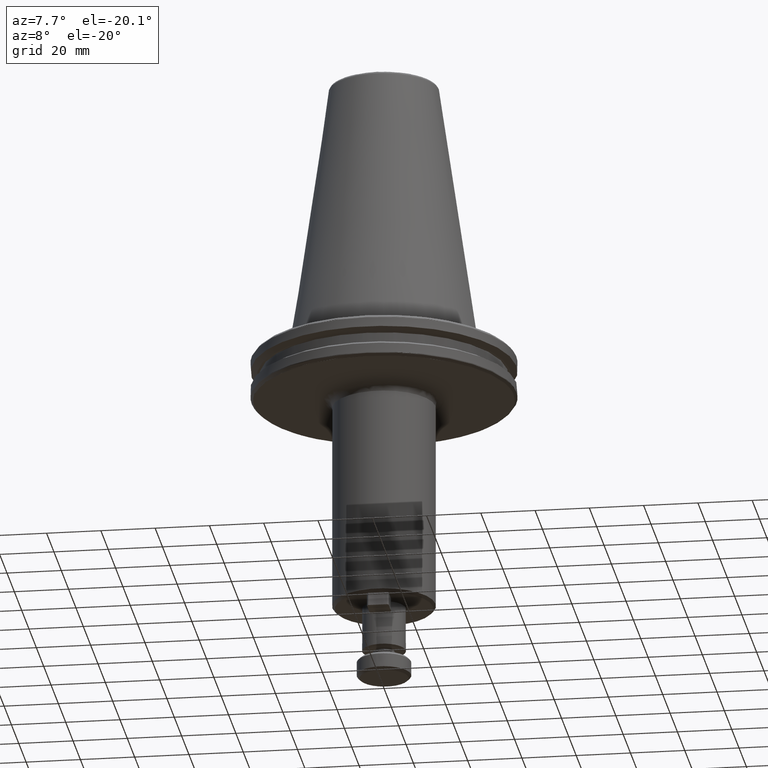
[diagram: clean part render]
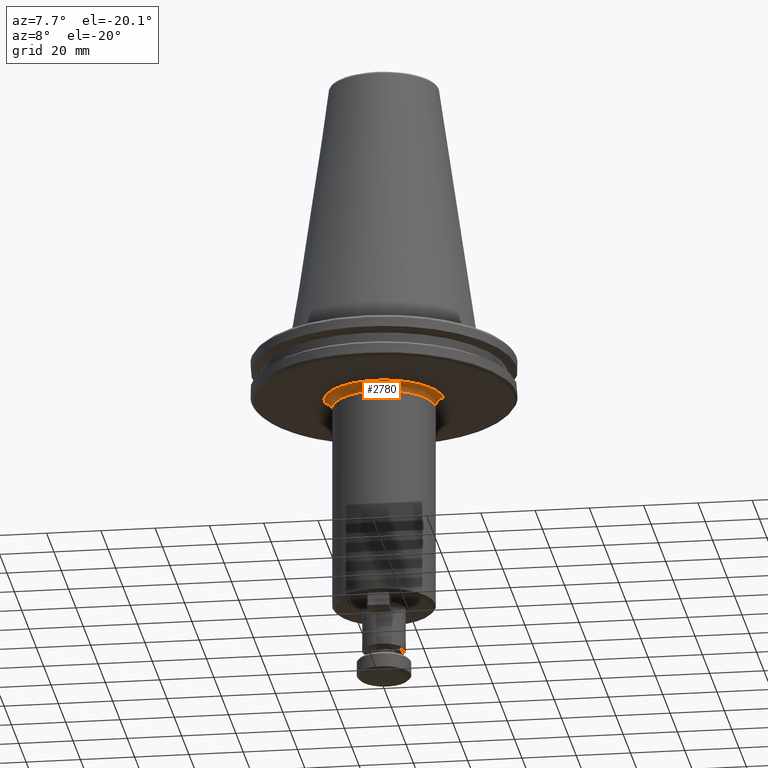
[diagram: same view with one face highlighted and labeled with its STEP entity id]
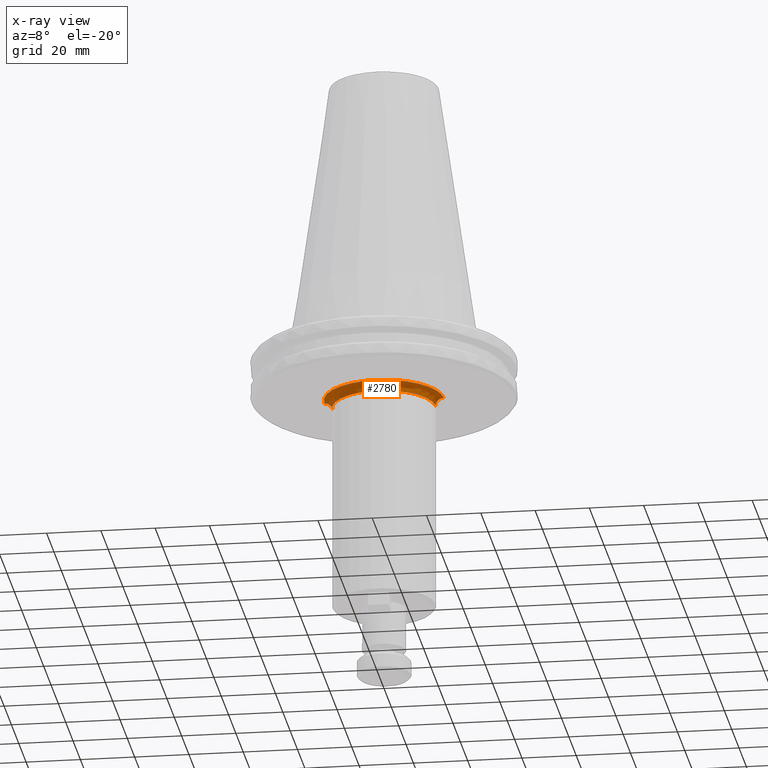
[diagram: x-ray of the same camera — body ghosted, the highlighted face saturated]
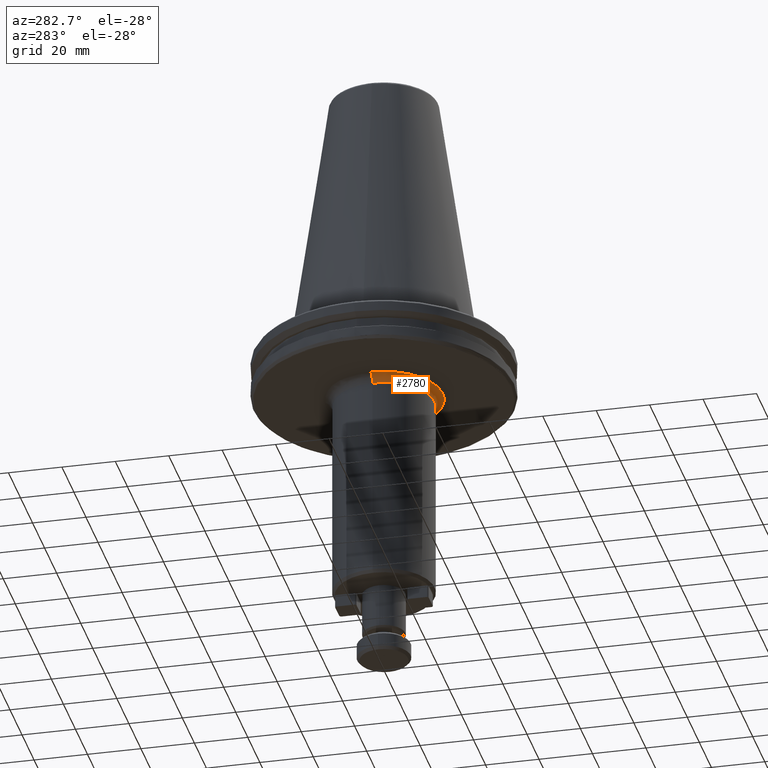
[diagram: same view with one face highlighted and labeled with its STEP entity id]
A machine part, auxiliary view. The second image highlights one B-rep face of the part: STEP entity #2780.
The next image is the same camera in x-ray: the body ghosted, the highlighted face saturated — about 0% of this face is hidden behind the body in this view.
A second angle (auxiliary view) of the same face is appended — the face is thin or edge-on in the first view.
In plain terms, the highlighted face is a freeform B-spline surface patch.
Its self-contained STEP definition (entity closure, byte-faithful):
#35 = CARTESIAN_POINT ( 'NONE',  ( -19.00000000000000000, 2.326828918379971000E-015, -22.10000000000000500 ) ) ;
#40 = CARTESIAN_POINT ( 'NONE',  ( 22.00000000000000000, 2.694222958124176800E-015, -19.10000000000000500 ) ) ;
#77 = CIRCLE ( 'NONE', #3198, 2.999999999999999100 ) ;
#142 = VERTEX_POINT ( 'NONE', #2658 ) ;
#177 = CARTESIAN_POINT ( 'NONE',  ( 19.00000000000000000, 2.326828918379971000E-015, -22.10000000000000500 ) ) ;
#183 = CARTESIAN_POINT ( 'NONE',  ( -20.67791877936986100, -7.515399659677927800, -19.10000000000000500 ) ) ;
#199 = CARTESIAN_POINT ( 'NONE',  ( -16.63001222808562200, -14.48263358433419300, -19.10000000000000500 ) ) ;
#214 = CARTESIAN_POINT ( 'NONE',  ( -8.270596387122957100, -20.38625831590732000, -19.10000000000000500 ) ) ;
#233 = CARTESIAN_POINT ( 'NONE',  ( -1.345275040422472500, -21.99996757059236800, -19.10000000000000900 ) ) ;
#246 = CARTESIAN_POINT ( 'NONE',  ( 7.515399659682968200, -20.67791877936862100, -19.10000000000000100 ) ) ;
#267 = CARTESIAN_POINT ( 'NONE',  ( 14.48263358431708000, -16.63001222810027400, -19.10000000000000500 ) ) ;
#283 = CARTESIAN_POINT ( 'NONE',  ( 20.38625831590878700, -8.270596387119361700, -19.10000000000000500 ) ) ;
#298 = CARTESIAN_POINT ( 'NONE',  ( 21.99999999999999600, -1.345805848813785000, -19.10000000000000100 ) ) ;
#340 = ORIENTED_EDGE ( 'NONE', *, *, #2550, .F. ) ;
#386 = CARTESIAN_POINT ( 'NONE',  ( -21.64787207006385500, -3.920464838257106300, -19.10000000000000100 ) ) ;
#498 = CIRCLE ( 'NONE', #3444, 2.999999999999999100 ) ;
#523 = CARTESIAN_POINT ( 'NONE',  ( -18.99999999999998900, -38.00000000000000000, -22.10000000000000500 ) ) ;
#527 = CARTESIAN_POINT ( 'NONE',  ( -20.52036344144876200, -7.932009045223953300, -19.09999999999999800 ) ) ;
#540 = CARTESIAN_POINT ( 'NONE',  ( -14.17717719791629700, -16.85304434524095600, -19.10000000000000500 ) ) ;
#554 = CARTESIAN_POINT ( 'NONE',  ( -8.139535032519747300, -20.43893125800334300, -19.10000000000000500 ) ) ;
#568 = CARTESIAN_POINT ( 'NONE',  ( 1.677514054503062000, -21.95411813887725900, -19.10000000000000500 ) ) ;
#583 = CARTESIAN_POINT ( 'NONE',  ( 7.932009045225540500, -20.52036344144837400, -19.10000000000000500 ) ) ;
#597 = CARTESIAN_POINT ( 'NONE',  ( 16.85304434525591300, -14.17717719790348600, -19.10000000000000500 ) ) ;
#613 = CARTESIAN_POINT ( 'NONE',  ( 20.43893125800291700, -8.139535032520859300, -19.10000000000000900 ) ) ;
#742 = EDGE_LOOP ( 'NONE', ( #1769, #340, #2151, #2997 ) ) ;
#761 = CARTESIAN_POINT ( 'NONE',  ( 22.00000000000000000, 2.694222958124176800E-015, -19.10000000000000500 ) ) ;
#841 = CARTESIAN_POINT ( 'NONE',  ( -22.00000000000000000, -5.388445916248353600E-015, -19.10000000000000500 ) ) ;
#864 = CARTESIAN_POINT ( 'NONE',  ( -20.47244127071620300, -8.054890344844070100, -19.10000000000000100 ) ) ;
#875 = CARTESIAN_POINT ( 'NONE',  ( -12.58948349908238900, -18.04357110901347700, -19.10000000000000100 ) ) ;
#889 = CARTESIAN_POINT ( 'NONE',  ( -6.425581732760171900, -21.06203278896098000, -19.10000000000000900 ) ) ;
#902 = CARTESIAN_POINT ( 'NONE',  ( 3.423553767312095300, -21.73315916266629000, -19.10000000000000500 ) ) ;
#918 = CARTESIAN_POINT ( 'NONE',  ( 8.054890344843361300, -20.47244127071656500, -19.10000000000000500 ) ) ;
#929 = CARTESIAN_POINT ( 'NONE',  ( 18.04357110902002500, -12.58948349907677600, -19.10000000000000900 ) ) ;
#944 = CARTESIAN_POINT ( 'NONE',  ( 21.06203278897300600, -6.425581732729024300, -19.10000000000000500 ) ) ;
#1019 = CIRCLE ( 'NONE', #3731, 19.00000000000000000 ) ;
#1114 = VERTEX_POINT ( 'NONE', #761 ) ;
#1144 = CARTESIAN_POINT ( 'NONE',  ( -21.82018490565353000, -2.842845475237781200, -19.10000000000000500 ) ) ;
#1171 = CARTESIAN_POINT ( 'NONE',  ( 20.24264068711928400, -40.48528137423856100, -19.10000000000000100 ) ) ;
#1188 = CARTESIAN_POINT ( 'NONE',  ( -19.72140032570629800, -9.800061415354756300, -19.10000000000000100 ) ) ;
#1200 = CARTESIAN_POINT ( 'NONE',  ( -12.19716485784353000, -18.30951292798233300, -19.10000000000000500 ) ) ;
#1212 = CARTESIAN_POINT ( 'NONE',  ( -4.615105481666332400, -21.51181872264644600, -19.10000000000000500 ) ) ;
#1223 = CARTESIAN_POINT ( 'NONE',  ( 3.858390362183781200, -21.65908406010714100, -19.10000000000000100 ) ) ;
#1243 = CARTESIAN_POINT ( 'NONE',  ( 9.800061415374729600, -19.72140032569657500, -19.10000000000000500 ) ) ;
#1256 = CARTESIAN_POINT ( 'NONE',  ( 18.30951292798441100, -12.19716485784174700, -19.10000000000000900 ) ) ;
#1272 = CARTESIAN_POINT ( 'NONE',  ( 21.51181872265170000, -4.615105481652700600, -19.10000000000000500 ) ) ;
#1329 = CARTESIAN_POINT ( 'NONE',  ( -21.25843199324159400, -5.742510465904495700, -19.10000000000000100 ) ) ;
#1396 = DIRECTION ( 'NONE',  ( -1.000000000000000000, 0.0000000000000000000, 0.0000000000000000000 ) ) ;
#1422 = DIRECTION ( 'NONE',  ( 0.0000000000000000000, 0.0000000000000000000, -1.000000000000000000 ) ) ;
#1447 = CARTESIAN_POINT ( 'NONE',  ( 0.0000000000000000000, 0.0000000000000000000, -22.10000000000000500 ) ) ;
#1468 = CARTESIAN_POINT ( 'NONE',  ( -22.00000000000000000, 0.0000000000000000000, -19.10000000000000500 ) ) ;
#1483 = CARTESIAN_POINT ( 'NONE',  ( -21.68460623744281800, -3.713555144556615500, -19.10000000000000900 ) ) ;
#1506 = CARTESIAN_POINT ( 'NONE',  ( -20.24264068711928000, -4.958017024754122100E-015, -19.10000000000000500 ) ) ;
#1525 = CARTESIAN_POINT ( 'NONE',  ( -18.76264944326572600, -11.49024314155859000, -19.10000000000000500 ) ) ;
#1536 = EDGE_CURVE ( 'NONE', #2333, #4168, #77, .T. ) ;
#1539 = CARTESIAN_POINT ( 'NONE',  ( -11.41650885390405200, -18.82064215870918700, -19.10000000000000500 ) ) ;
#1554 = CARTESIAN_POINT ( 'NONE',  ( -4.156561715446715200, -21.60385400619337700, -19.10000000000000500 ) ) ;
#1571 = CARTESIAN_POINT ( 'NONE',  ( 3.961824609640165000, -21.64034092733157200, -19.10000000000000900 ) ) ;
#1590 = CARTESIAN_POINT ( 'NONE',  ( 11.49024314156732300, -18.76264944326147300, -19.10000000000000900 ) ) ;
#1606 = CARTESIAN_POINT ( 'NONE',  ( 18.82064215871527700, -11.41650885388909800, -19.10000000000000500 ) ) ;
#1622 = CARTESIAN_POINT ( 'NONE',  ( 21.60385400619484400, -4.156561715442944800, -19.10000000000000900 ) ) ;
#1769 = ORIENTED_EDGE ( 'NONE', *, *, #2446, .F. ) ;
#1801 = CARTESIAN_POINT ( 'NONE',  ( -22.00000000000001100, -0.6727251541957888200, -19.10000000000000900 ) ) ;
#1840 = CARTESIAN_POINT ( 'NONE',  ( 19.00000000000000400, -37.99999999999999300, -20.34264068711928900 ) ) ;
#1858 = DIRECTION ( 'NONE',  ( 0.0000000000000000000, 1.000000000000000000, 0.0000000000000000000 ) ) ;
#1861 = CARTESIAN_POINT ( 'NONE',  ( -18.51510597627840200, -11.88274179770220100, -19.10000000000000500 ) ) ;
#1871 = CARTESIAN_POINT ( 'NONE',  ( -9.292882531713081200, -19.94720436761992800, -19.10000000000000500 ) ) ;
#1888 = CARTESIAN_POINT ( 'NONE',  ( -4.047036669477746400, -21.62456841593416000, -19.10000000000000100 ) ) ;
#1902 = CARTESIAN_POINT ( 'NONE',  ( 4.704593584888384900, -21.50293857562065000, -19.10000000000000100 ) ) ;
#1915 = CARTESIAN_POINT ( 'NONE',  ( 11.88274179770495200, -18.51510597627705900, -19.10000000000000100 ) ) ;
#1931 = CARTESIAN_POINT ( 'NONE',  ( 19.94720436762795800, -9.292882531693452500, -19.10000000000000900 ) ) ;
#1948 = CARTESIAN_POINT ( 'NONE',  ( 21.62456841593457900, -4.047036669476645100, -19.10000000000000100 ) ) ;
#2036 = CARTESIAN_POINT ( 'NONE',  ( -22.00000000000000000, 0.0000000000000000000, -22.10000000000000500 ) ) ;
#2104 = B_SPLINE_CURVE_WITH_KNOTS ( 'NONE', 3,
 ( #1468, #1801, #3750, #1144, #3437, #1483, #2426, #386, #4094, #3006, #3120, #1329, #2180, #183, #2512, #527, #2835, #864, #3153, #1188, #3475, #1525, #3789, #1861, #4065, #2195, #199, #2525, #540, #2846, #875, #3171, #1200, #3487, #1539, #3801, #1871, #4077, #2211, #214, #2538, #554, #2861, #889, #3185, #1212, #3500, #1554, #3813, #1888, #4087, #2227, #233, #2555, #568, #2873, #902, #3196, #1223, #3516, #1571, #3825, #1902, #4106, #2238, #246, #2574, #583, #2886, #918, #3213, #1243, #3527, #1590, #3839, #1915, #4118, #2255, #267, #2588, #597, #2900, #929, #3225, #1256, #3544, #1606, #3855, #1931, #4127, #2274, #283, #2600, #613, #2917, #944, #3238, #1272, #3559, #1622, #3865, #1948, #4139, #2288, #298, #2615 ),
 .UNSPECIFIED., .F., .F.,
 ( 4, 1, 1, 1, 1, 1, 2, 2, 1, 1, 1, 1, 2, 2, 1, 1, 1, 2, 2, 2, 1, 1, 1, 2, 2, 1, 1, 1, 1, 2, 2, 1, 1, 1, 1, 1, 2, 2, 2, 1, 1, 1, 1, 1, 2, 2, 1, 1, 1, 1, 2, 2, 1, 1, 1, 2, 2, 2, 1, 1, 1, 2, 2, 1, 1, 1, 1, 2, 2, 1, 1, 1, 1, 1, 2, 2, 4 ),
 ( 0.0000000000000000000, 0.03124999999999712000, 0.04687499999999569100, 0.05468749999999499000, 0.05859374999999465000, 0.06054687499999445600, 0.06152343749999435200, 0.06249999999999424100, 0.09374999999999088200, 0.1093749999999891900, 0.1171874999999883300, 0.1210937499999879100, 0.1230468749999877700, 0.1249999999999876300, 0.1562499999999851000, 0.1718749999999839000, 0.1796874999999832900, 0.1835937499999830700, 0.1874999999999828500, 0.2499999999999784100, 0.2812499999999761900, 0.2968749999999750800, 0.3046874999999745800, 0.3085937499999743000, 0.3124999999999739700, 0.3437499999999719700, 0.3593749999999709100, 0.3671874999999703600, 0.3710937499999700800, 0.3730468749999699700, 0.3749999999999698000, 0.4062499999999684100, 0.4218749999999676900, 0.4296874999999673600, 0.4335937499999671400, 0.4355468749999670800, 0.4365234374999670300, 0.4374999999999670300, 0.4999999999999700200, 0.5312499999999714700, 0.5468749999999722400, 0.5546874999999726900, 0.5585937499999728000, 0.5605468749999729100, 0.5615234374999729100, 0.5624999999999729100, 0.5937499999999753500, 0.6093749999999765700, 0.6171874999999772400, 0.6210937499999773500, 0.6230468749999774600, 0.6249999999999774600, 0.6562499999999781300, 0.6718749999999784600, 0.6796874999999786800, 0.6835937499999787900, 0.6874999999999787900, 0.7499999999999814600, 0.7812499999999829000, 0.7968749999999834600, 0.8046874999999836800, 0.8085937499999839000, 0.8124999999999841200, 0.8437499999999862300, 0.8593749999999873400, 0.8671874999999877900, 0.8710937499999881200, 0.8730468749999882300, 0.8749999999999884500, 0.9062499999999910100, 0.9218749999999923400, 0.9296874999999928900, 0.9335937499999932300, 0.9355468749999933400, 0.9365234374999934500, 0.9374999999999934500, 1.000000000000000000 ),
 .UNSPECIFIED. ) ;
#2151 = ORIENTED_EDGE ( 'NONE', *, *, #1536, .T. ) ;
#2175 = CARTESIAN_POINT ( 'NONE',  ( -19.00000000000000000, -4.653657836759942700E-015, -20.34264068711928900 ) ) ;
#2180 = CARTESIAN_POINT ( 'NONE',  ( -20.88595905968001500, -6.928576152040716500, -19.10000000000000900 ) ) ;
#2195 = CARTESIAN_POINT ( 'NONE',  ( -17.58303452886411500, -13.30955040852844600, -19.10000000000000500 ) ) ;
#2211 = CARTESIAN_POINT ( 'NONE',  ( -8.399625677583706800, -20.33376319354410500, -19.10000000000000900 ) ) ;
#2227 = CARTESIAN_POINT ( 'NONE',  ( -2.680376879395083300, -21.87754025529204300, -19.10000000000000500 ) ) ;
#2238 = CARTESIAN_POINT ( 'NONE',  ( 6.928576152049376300, -20.88595905967789800, -19.10000000000000500 ) ) ;
#2255 = CARTESIAN_POINT ( 'NONE',  ( 13.30955040853260700, -17.58303452885749600, -19.10000000000000500 ) ) ;
#2274 = CARTESIAN_POINT ( 'NONE',  ( 20.33376319354658800, -8.399625677577571300, -19.10000000000000500 ) ) ;
#2288 = CARTESIAN_POINT ( 'NONE',  ( 21.87757270172154000, -2.680201566502888400, -19.10000000000000100 ) ) ;
#2300 = EDGE_CURVE ( 'NONE', #142, #4168, #1019, .T. ) ;
#2333 = VERTEX_POINT ( 'NONE', #2800 ) ;
#2412 = DIRECTION ( 'NONE',  ( -1.000000000000000000, 0.0000000000000000000, 0.0000000000000000000 ) ) ;
#2426 = CARTESIAN_POINT ( 'NONE',  ( -21.65908062398338200, -3.858408933057463600, -19.10000000000000500 ) ) ;
#2446 = EDGE_CURVE ( 'NONE', #1114, #142, #498, .T. ) ;
#2489 = CARTESIAN_POINT ( 'NONE',  ( 22.00000000000000700, -43.99999999999999300, -19.10000000000000900 ) ) ;
#2491 =( BOUNDED_SURFACE ( )  B_SPLINE_SURFACE ( 3, 3, ( 
 ( #40, #2489, #2822, #841 ),
 ( #3136, #1171, #3459, #1506 ),
 ( #3772, #1840, #4045, #2175 ),
 ( #177, #2508, #523, #2830 ) ),
 .UNSPECIFIED., .F., .F., .T. ) 
 B_SPLINE_SURFACE_WITH_KNOTS ( ( 4, 4 ),
 ( 4, 4 ),
 ( 0.0000000000000000000, 1.000000000000000000 ),
 ( 0.0000000000000000000, 1.000000000000000000 ),
 .UNSPECIFIED. ) 
 GEOMETRIC_REPRESENTATION_ITEM ( )  RATIONAL_B_SPLINE_SURFACE ( (
 ( 1.000000000000000000, 0.3333333333333334300, 0.3333333333333334300, 1.000000000000000000),
 ( 0.8047378541243649400, 0.2682459513747884100, 0.2682459513747884100, 0.8047378541243649400),
 ( 0.8047378541243649400, 0.2682459513747884100, 0.2682459513747884100, 0.8047378541243649400),
 ( 1.000000000000000000, 0.3333333333333334300, 0.3333333333333334300, 1.000000000000000000) ) ) 
 REPRESENTATION_ITEM ( '' )  SURFACE ( )  );
#2508 = CARTESIAN_POINT ( 'NONE',  ( 19.00000000000000400, -37.99999999999999300, -22.10000000000000500 ) ) ;
#2512 = CARTESIAN_POINT ( 'NONE',  ( -20.56844768583244200, -7.807259079638802400, -19.09999999999999800 ) ) ;
#2525 = CARTESIAN_POINT ( 'NONE',  ( -15.01951766511325700, -16.09320698698896700, -19.10000000000000100 ) ) ;
#2538 = CARTESIAN_POINT ( 'NONE',  ( -8.184441510773671900, -20.42099529585858200, -19.10000000000000500 ) ) ;
#2550 = EDGE_CURVE ( 'NONE', #2333, #1114, #2104, .T. ) ;
#2555 = CARTESIAN_POINT ( 'NONE',  ( 0.6726375202112275800, -22.00001621470382000, -19.10000000000000100 ) ) ;
#2574 = CARTESIAN_POINT ( 'NONE',  ( 7.807259079641511300, -20.56844768583179200, -19.10000000000000500 ) ) ;
#2588 = CARTESIAN_POINT ( 'NONE',  ( 16.09320698699752200, -15.01951766510593500, -19.10000000000000100 ) ) ;
#2600 = CARTESIAN_POINT ( 'NONE',  ( 20.42099529585932800, -8.184441510771826200, -19.10000000000000100 ) ) ;
#2615 = CARTESIAN_POINT ( 'NONE',  ( 22.00000000000000000, 2.694222958124176800E-015, -19.10000000000000500 ) ) ;
#2626 = DIRECTION ( 'NONE',  ( 1.000000000000000000, 1.224646799147353500E-016, 0.0000000000000000000 ) ) ;
#2658 = CARTESIAN_POINT ( 'NONE',  ( 19.00000000000000000, 0.0000000000000000000, -22.10000000000000500 ) ) ;
#2780 = ADVANCED_FACE ( 'NONE', ( #4157 ), #2491, .F. ) ;
#2800 = CARTESIAN_POINT ( 'NONE',  ( -22.00000000000000000, 0.0000000000000000000, -19.10000000000000500 ) ) ;
#2822 = CARTESIAN_POINT ( 'NONE',  ( -21.99999999999998900, -44.00000000000000000, -19.10000000000000900 ) ) ;
#2830 = CARTESIAN_POINT ( 'NONE',  ( -19.00000000000000000, -4.653657836759941900E-015, -22.10000000000000500 ) ) ;
#2835 = CARTESIAN_POINT ( 'NONE',  ( -20.48804770931762300, -8.015101768287497200, -19.10000000000000100 ) ) ;
#2846 = CARTESIAN_POINT ( 'NONE',  ( -13.12953357785933100, -17.65998491281962800, -19.10000000000000500 ) ) ;
#2861 = CARTESIAN_POINT ( 'NONE',  ( -7.434860855824465100, -20.71792446929553200, -19.10000000000000900 ) ) ;
#2873 = CARTESIAN_POINT ( 'NONE',  ( 2.842730455633050800, -21.82020618745228200, -19.10000000000000500 ) ) ;
#2886 = CARTESIAN_POINT ( 'NONE',  ( 8.015101768288312600, -20.48804770931743500, -19.10000000000000100 ) ) ;
#2900 = CARTESIAN_POINT ( 'NONE',  ( 17.65998491283085400, -13.12953357784971700, -19.10000000000000500 ) ) ;
#2917 = CARTESIAN_POINT ( 'NONE',  ( 20.71792446930240700, -7.434860855806672200, -19.10000000000000500 ) ) ;
#2997 = ORIENTED_EDGE ( 'NONE', *, *, #2300, .F. ) ;
#3006 = CARTESIAN_POINT ( 'NONE',  ( -21.63677371546283400, -3.981268202072975300, -19.09999999999999800 ) ) ;
#3120 = CARTESIAN_POINT ( 'NONE',  ( -21.50293857562226700, -4.704593584881790100, -19.10000000000000500 ) ) ;
#3136 = CARTESIAN_POINT ( 'NONE',  ( 20.24264068711928000, 2.479008512377061100E-015, -19.10000000000000500 ) ) ;
#3153 = CARTESIAN_POINT ( 'NONE',  ( -20.18176426588960100, -8.789175858635239500, -19.09999999999999800 ) ) ;
#3171 = CARTESIAN_POINT ( 'NONE',  ( -12.35455597916045900, -18.20370431718323400, -19.10000000000000500 ) ) ;
#3185 = CARTESIAN_POINT ( 'NONE',  ( -5.222810687814875200, -21.37640470910642800, -19.10000000000000500 ) ) ;
#3196 = CARTESIAN_POINT ( 'NONE',  ( 3.713519200930136800, -21.68461288800491400, -19.10000000000000500 ) ) ;
#3198 = AXIS2_PLACEMENT_3D ( 'NONE', #2036, #1858, #2412 ) ;
#3213 = CARTESIAN_POINT ( 'NONE',  ( 8.789175858646654400, -20.18176426588403800, -19.10000000000000500 ) ) ;
#3225 = CARTESIAN_POINT ( 'NONE',  ( 18.20370431718718200, -12.35455597915707800, -19.10000000000000100 ) ) ;
#3238 = CARTESIAN_POINT ( 'NONE',  ( 21.37640470911545500, -5.222810687791520600, -19.10000000000000500 ) ) ;
#3437 = CARTESIAN_POINT ( 'NONE',  ( -21.73314674828367300, -3.423620862081526300, -19.10000000000000500 ) ) ;
#3444 = AXIS2_PLACEMENT_3D ( 'NONE', #4081, #3601, #2626 ) ;
#3459 = CARTESIAN_POINT ( 'NONE',  ( -20.24264068711927300, -40.48528137423856100, -19.10000000000000100 ) ) ;
#3475 = CARTESIAN_POINT ( 'NONE',  ( -19.09681535523352000, -10.93436047073400600, -19.10000000000000500 ) ) ;
#3487 = CARTESIAN_POINT ( 'NONE',  ( -12.11637778954427000, -18.36305863282296600, -19.10000000000000100 ) ) ;
#3500 = CARTESIAN_POINT ( 'NONE',  ( -4.309672957673082100, -21.57408274278325800, -19.10000000000000500 ) ) ;
#3516 = CARTESIAN_POINT ( 'NONE',  ( 3.920454097959194900, -21.64787405731516000, -19.10000000000000900 ) ) ;
#3527 = CARTESIAN_POINT ( 'NONE',  ( 10.93436047074899000, -19.09681535522622700, -19.10000000000000900 ) ) ;
#3544 = CARTESIAN_POINT ( 'NONE',  ( 18.36305863282221300, -12.11637778954613900, -19.10000000000000900 ) ) ;
#3559 = CARTESIAN_POINT ( 'NONE',  ( 21.57408274278608200, -4.309672957665784800, -19.10000000000000500 ) ) ;
#3601 = DIRECTION ( 'NONE',  ( 1.224646799147353200E-016, -1.000000000000000000, 0.0000000000000000000 ) ) ;
#3731 = AXIS2_PLACEMENT_3D ( 'NONE', #1447, #1422, #1396 ) ;
#3750 = CARTESIAN_POINT ( 'NONE',  ( -21.95408976314558200, -1.677667413976028400, -19.10000000000000500 ) ) ;
#3772 = CARTESIAN_POINT ( 'NONE',  ( 19.00000000000000000, 2.326828918379971400E-015, -20.34264068711928900 ) ) ;
#3789 = CARTESIAN_POINT ( 'NONE',  ( -18.61474831812280000, -11.72606424544090200, -19.10000000000000900 ) ) ;
#3801 = CARTESIAN_POINT ( 'NONE',  ( -10.45736319296324600, -19.38087801470371100, -19.10000000000000100 ) ) ;
#3813 = CARTESIAN_POINT ( 'NONE',  ( -4.090857973014756500, -21.61632153051380500, -19.10000000000000900 ) ) ;
#3825 = CARTESIAN_POINT ( 'NONE',  ( 3.981268202072770500, -21.63677371546288000, -19.10000000000000500 ) ) ;
#3839 = CARTESIAN_POINT ( 'NONE',  ( 11.72606424544615300, -18.61474831812023800, -19.10000000000000900 ) ) ;
#3855 = CARTESIAN_POINT ( 'NONE',  ( 19.38087801471439400, -10.45736319293707000, -19.10000000000000900 ) ) ;
#3865 = CARTESIAN_POINT ( 'NONE',  ( 21.61632153051464300, -4.090857973012576900, -19.10000000000000900 ) ) ;
#4045 = CARTESIAN_POINT ( 'NONE',  ( -18.99999999999998900, -38.00000000000000000, -20.34264068711928900 ) ) ;
#4065 = CARTESIAN_POINT ( 'NONE',  ( -18.46583041668197100, -11.95918108484468200, -19.10000000000000900 ) ) ;
#4077 = CARTESIAN_POINT ( 'NONE',  ( -8.699272853549855400, -20.20854700764204600, -19.10000000000001200 ) ) ;
#4081 = CARTESIAN_POINT ( 'NONE',  ( 22.00000000000000000, 2.694222958124176800E-015, -22.10000000000000500 ) ) ;
#4087 = CARTESIAN_POINT ( 'NONE',  ( -4.023856063593309600, -21.62889275906889400, -19.10000000000000500 ) ) ;
#4094 = CARTESIAN_POINT ( 'NONE',  ( -21.64033992182992300, -3.961830043974169200, -19.09999999999999800 ) ) ;
#4106 = CARTESIAN_POINT ( 'NONE',  ( 5.742510465916042000, -21.25843199323876900, -19.10000000000000900 ) ) ;
#4118 = CARTESIAN_POINT ( 'NONE',  ( 11.95918108484441000, -18.46583041668237600, -19.10000000000000100 ) ) ;
#4127 = CARTESIAN_POINT ( 'NONE',  ( 20.20854700764671800, -8.699272853538399600, -19.10000000000000500 ) ) ;
#4139 = CARTESIAN_POINT ( 'NONE',  ( 21.62889225209343300, -4.023858802857253300, -19.10000000000000500 ) ) ;
#4157 = FACE_OUTER_BOUND ( 'NONE', #742, .T. ) ;
#4168 = VERTEX_POINT ( 'NONE', #35 ) ;